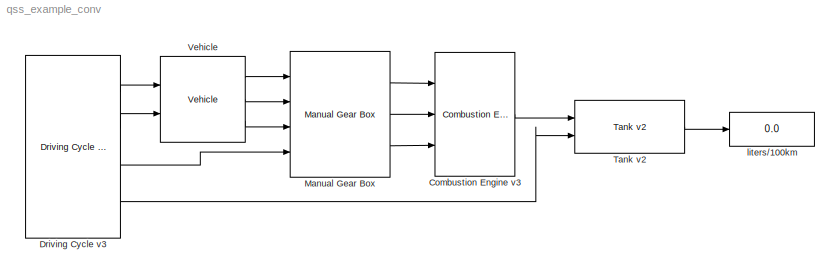
MODEL qss_example_conv
KIND model
BLOCK [Reference] Combustion Engine v3  REF=qss_tb_library_aalto/Energy Converter/Combustion Engine v3  (lib defined in mdl_0a709b6458aa)
  ENABLE_FUEL_CUTOFF = on
  P_CE_cutoff = 0
  P_CE_idle = 0
  P_aux = 300
  Ports = [3, 1]
  SID = 232
  SourceBlock = qss_tb_library_aalto/Energy Converter/Combustion Engine v3
  SourceType = Combustion Engine (based on consumption map)
  T_CE_cutoff = 2
  Tag = combustion engine
  V_d = 1.9
  engine_type = Otto
  theta_CE = 0.1
  w_CE_idle = 105
BLOCK [Reference] Driving Cycle v3  REF=qss_tb_library_aalto/Driving Cycle/Driving Cycle v3  (lib defined in mdl_0a709b6458aa)
  Ports = [0, 4]
  SID = 263
  SourceBlock = qss_tb_library_aalto/Driving Cycle/Driving Cycle v3
  SourceType = Driving Cycle
  Tag = cycle
  autostop = on
  cyclenr = Europe: NEDC
  stepsize = 1
BLOCK [Reference] Manual Gear Box  REF=qss_tb_library_aalto/Gear System/Manual Gear Box  (lib defined in mdl_0a709b6458aa)
  P_GT0 = 300
  Ports = [4, 3]
  SID = 181
  SourceBlock = qss_tb_library_aalto/Gear System/Manual Gear Box
  SourceType = Manual Gear Box
  Tag = transmission
  e_GT = 0.98
  i_1 = 15.174
  i_2 = 8.338
  i_3 = 5.378
  i_4 = 3.937
  i_5 = 2.748
  i_diff = 1
  w_wheel_min = 1
BLOCK [Reference] Tank v2  REF=qss_tb_library_aalto/Energy Source/Tank v2  (lib defined in mdl_0a709b6458aa)
  Ports = [2, 1]
  SID = 178
  SourceBlock = qss_tb_library_aalto/Energy Source/Tank v2
  SourceType = Tank
  Tag = tank
  flag_cold_start = off
BLOCK [Reference] Vehicle  REF=qss_tb_library_aalto/Vehicle/Vehicle  (lib defined in mdl_0a709b6458aa)
  A_f = 2.0
  Ports = [2, 3]
  SID = 180
  SourceBlock = qss_tb_library_aalto/Vehicle/Vehicle
  SourceType = Vehicle
  Tag = vehicle
  cw = 0.33
  d_wheel = 0.6
  m_f = 1200
  mt2m_f = 5
  mu = 0.01
BLOCK [Display] liters//100km
  Decimation = 1
  Ports = [1]
  SID = 179
LINE Combustion Engine v3:1 -> Tank v2:1
LINE Driving Cycle v3:1 -> Vehicle:1
LINE Driving Cycle v3:2 -> Vehicle:2
LINE Driving Cycle v3:3 -> Manual Gear Box:4
LINE Driving Cycle v3:4 -> Tank v2:2
LINE Manual Gear Box:1 -> Combustion Engine v3:1
LINE Manual Gear Box:2 -> Combustion Engine v3:2
LINE Manual Gear Box:3 -> Combustion Engine v3:3
LINE Tank v2:1 -> liters//100km:1
LINE Vehicle:1 -> Manual Gear Box:1
LINE Vehicle:2 -> Manual Gear Box:2
LINE Vehicle:3 -> Manual Gear Box:3
